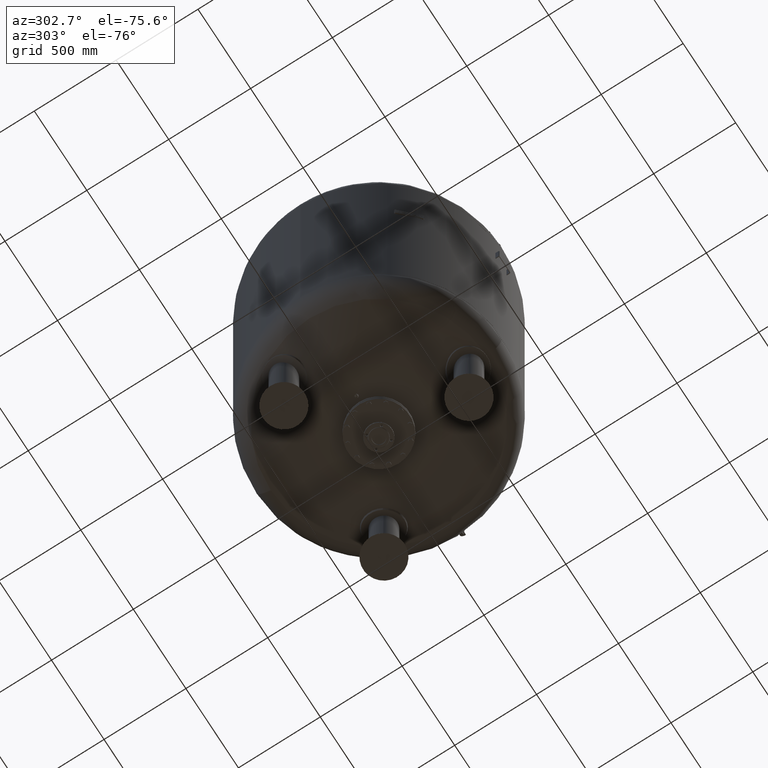
[diagram: clean part render]
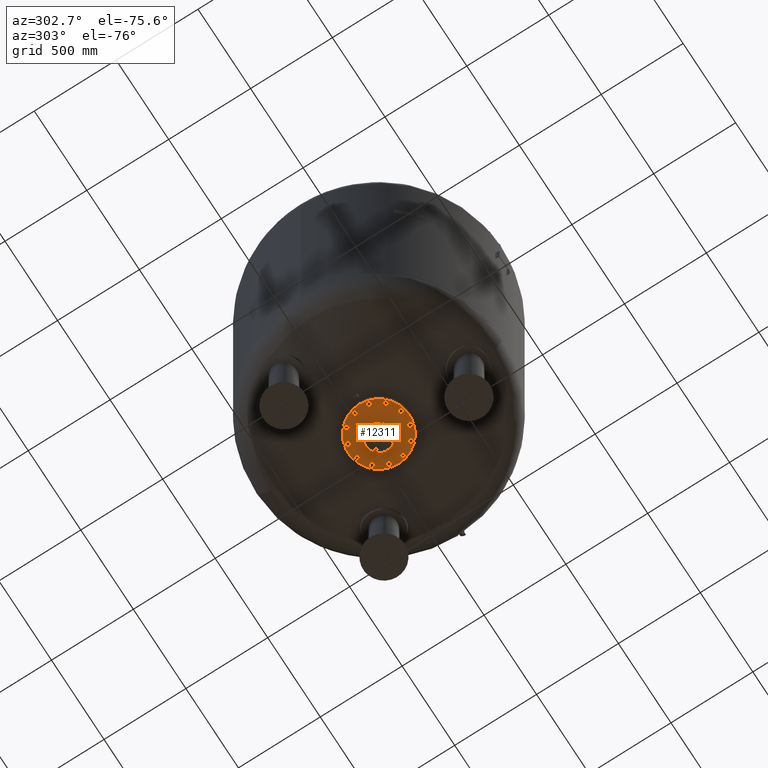
[diagram: same view with one face highlighted and labeled with its STEP entity id]
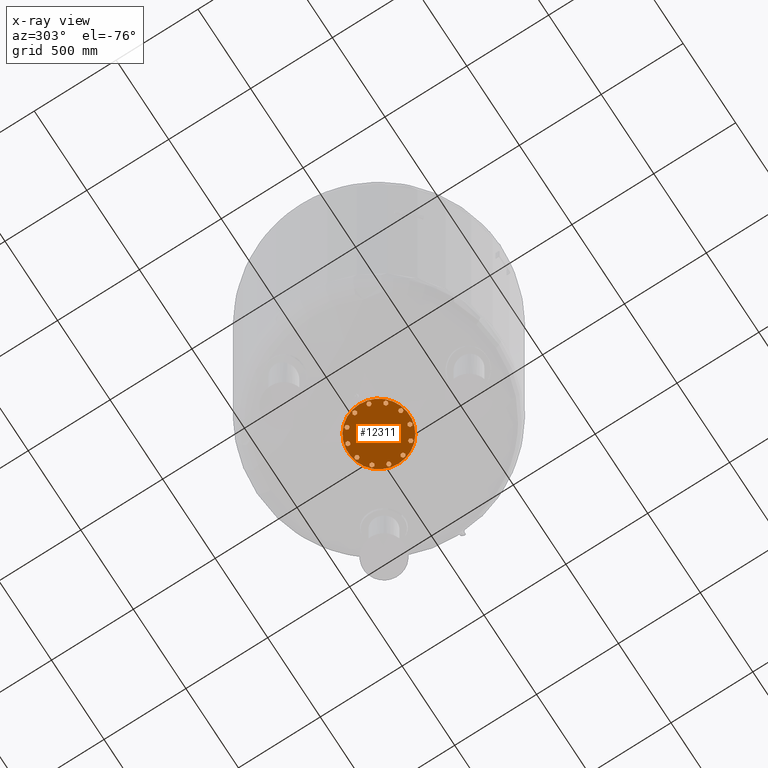
[diagram: x-ray of the same camera — body ghosted, the highlighted face saturated]
A machine part, auxiliary view. The second image highlights one B-rep face of the part: STEP entity #12311.
The next image is the same camera in x-ray: the body ghosted, the highlighted face saturated — about 0% of this face is hidden behind the body in this view.
In plain terms, the highlighted planar face has unit normal (0, 0, -1).
Its self-contained STEP definition (entity closure, byte-faithful):
#4455=CARTESIAN_POINT('',(-38.050000000000018,-4.163799E-015,413.0));
#4456=VERTEX_POINT('',#4455);
#4472=CARTESIAN_POINT('',(38.049999999999983,-8.823426E-015,413.0));
#4473=VERTEX_POINT('',#4472);
#4480=CARTESIAN_POINT('',(-8.604691E-015,-4.163799E-015,413.0));
#4481=DIRECTION('',(0.0,0.0,-1.0));
#4482=DIRECTION('',(-1.0,0.0,0.0));
#4483=AXIS2_PLACEMENT_3D('',#4480,#4481,#4482);
#4484=CIRCLE('',#4483,38.050000000000004);
#4485=EDGE_CURVE('',#4473,#4456,#4484,.T.);
#4495=CARTESIAN_POINT('',(-187.500000000000000,-4.163799E-015,413.000000000000110));
#4496=VERTEX_POINT('',#4495);
#4505=CARTESIAN_POINT('',(187.500000000000000,-2.712517E-014,413.000000000000110));
#4506=VERTEX_POINT('',#4505);
#4507=CARTESIAN_POINT('',(-8.604691E-015,-4.163799E-015,413.000000000000110));
#4508=DIRECTION('',(0.0,0.0,-1.0));
#4509=DIRECTION('',(-1.0,0.0,0.0));
#4510=AXIS2_PLACEMENT_3D('',#4507,#4508,#4509);
#4511=CIRCLE('',#4510,187.500000000000000);
#4512=EDGE_CURVE('',#4506,#4496,#4511,.T.);
#6485=CARTESIAN_POINT('',(43.352190054672320,-175.648982363969960,413.0));
#6486=VERTEX_POINT('',#6485);
#6487=CARTESIAN_POINT('',(55.352190054672313,-168.720779133694460,413.0));
#6488=VERTEX_POINT('',#6487);
#6489=CARTESIAN_POINT('',(43.352190054672320,-175.648982363969960,413.0));
#6490=DIRECTION('',(0.866025403784439,0.500000000000000,0.0));
#6491=VECTOR('',#6490,13.856406460551009);
#6492=LINE('',#6489,#6491);
#6493=EDGE_CURVE('',#6486,#6488,#6492,.T.);
#6525=CARTESIAN_POINT('',(31.352190054672334,-168.720779133694460,413.0));
#6526=VERTEX_POINT('',#6525);
#6527=CARTESIAN_POINT('',(31.352190054672334,-168.720779133694460,413.0));
#6528=DIRECTION('',(0.866025403784439,-0.500000000000000,0.0));
#6529=VECTOR('',#6528,13.856406460551002);
#6530=LINE('',#6527,#6529);
#6531=EDGE_CURVE('',#6526,#6486,#6530,.T.);
#6556=CARTESIAN_POINT('',(31.352190054672349,-154.864372673143440,413.0));
#6557=VERTEX_POINT('',#6556);
#6558=CARTESIAN_POINT('',(31.352190054672349,-154.864372673143440,413.0));
#6559=DIRECTION('',(0.0,-1.0,0.0));
#6560=VECTOR('',#6559,13.856406460551028);
#6561=LINE('',#6558,#6560);
#6562=EDGE_CURVE('',#6557,#6526,#6561,.T.);
#6587=CARTESIAN_POINT('',(43.352190054672320,-147.936169442867940,413.0));
#6588=VERTEX_POINT('',#6587);
#6589=CARTESIAN_POINT('',(43.352190054672320,-147.936169442867940,413.0));
#6590=DIRECTION('',(-0.866025403784438,-0.500000000000000,0.0));
#6591=VECTOR('',#6590,13.856406460550989);
#6592=LINE('',#6589,#6591);
#6593=EDGE_CURVE('',#6588,#6557,#6592,.T.);
#6618=CARTESIAN_POINT('',(55.352190054672313,-154.864372673143440,413.0));
#6619=VERTEX_POINT('',#6618);
#6620=CARTESIAN_POINT('',(55.352190054672313,-168.720779133694460,413.0));
#6621=DIRECTION('',(0.0,1.0,0.0));
#6622=VECTOR('',#6621,13.856406460551028);
#6623=LINE('',#6620,#6622);
#6624=EDGE_CURVE('',#6488,#6619,#6623,.T.);
#6649=CARTESIAN_POINT('',(55.352190054672313,-154.864372673143440,413.0));
#6650=DIRECTION('',(-0.866025403784439,0.500000000000000,0.0));
#6651=VECTOR('',#6650,13.856406460551009);
#6652=LINE('',#6649,#6651);
#6653=EDGE_CURVE('',#6619,#6588,#6652,.T.);
#6959=CARTESIAN_POINT('',(125.368589079022360,-130.440385848746640,413.0));
#6960=VERTEX_POINT('',#6959);
#6961=CARTESIAN_POINT('',(132.296792309297840,-118.440385848746640,413.0));
#6962=VERTEX_POINT('',#6961);
#6963=CARTESIAN_POINT('',(125.368589079022360,-130.440385848746640,413.0));
#6964=DIRECTION('',(0.499999999999999,0.866025403784439,0.0));
#6965=VECTOR('',#6964,13.856406460551007);
#6966=LINE('',#6963,#6965);
#6967=EDGE_CURVE('',#6960,#6962,#6966,.T.);
#6999=CARTESIAN_POINT('',(111.512182618471340,-130.440385848746640,413.0));
#7000=VERTEX_POINT('',#6999);
#7001=CARTESIAN_POINT('',(111.512182618471340,-130.440385848746640,413.0));
#7002=DIRECTION('',(1.0,0.0,0.0));
#7003=VECTOR('',#7002,13.856406460551014);
#7004=LINE('',#7001,#7003);
#7005=EDGE_CURVE('',#7000,#6960,#7004,.T.);
#7030=CARTESIAN_POINT('',(104.583979388195840,-118.440385848746660,413.0));
#7031=VERTEX_POINT('',#7030);
#7032=CARTESIAN_POINT('',(104.583979388195840,-118.440385848746660,413.0));
#7033=DIRECTION('',(0.500000000000000,-0.866025403784439,0.0));
#7034=VECTOR('',#7033,13.856406460551002);
#7035=LINE('',#7032,#7034);
#7036=EDGE_CURVE('',#7031,#7000,#7035,.T.);
#7061=CARTESIAN_POINT('',(111.512182618471340,-106.440385848746640,413.0));
#7062=VERTEX_POINT('',#7061);
#7063=CARTESIAN_POINT('',(111.512182618471340,-106.440385848746640,413.0));
#7064=DIRECTION('',(-0.499999999999999,-0.866025403784439,0.0));
#7065=VECTOR('',#7064,13.856406460551026);
#7066=LINE('',#7063,#7065);
#7067=EDGE_CURVE('',#7062,#7031,#7066,.T.);
#7092=CARTESIAN_POINT('',(125.368589079022340,-106.440385848746640,413.0));
#7093=VERTEX_POINT('',#7092);
#7094=CARTESIAN_POINT('',(132.296792309297840,-118.440385848746640,413.0));
#7095=DIRECTION('',(-0.500000000000000,0.866025403784439,0.0));
#7096=VECTOR('',#7095,13.856406460551014);
#7097=LINE('',#7094,#7096);
#7098=EDGE_CURVE('',#6962,#7093,#7097,.T.);
#7123=CARTESIAN_POINT('',(125.368589079022340,-106.440385848746640,413.0));
#7124=DIRECTION('',(-1.0,0.0,0.0));
#7125=VECTOR('',#7124,13.856406460551000);
#7126=LINE('',#7123,#7125);
#7127=EDGE_CURVE('',#7093,#7062,#7126,.T.);
#7433=CARTESIAN_POINT('',(173.792575903418990,-50.280393284947714,413.0));
#7434=VERTEX_POINT('',#7433);
#7435=CARTESIAN_POINT('',(173.792575903418990,-36.423986824396700,413.0));
#7436=VERTEX_POINT('',#7435);
#7437=CARTESIAN_POINT('',(173.792575903418990,-50.280393284947714,413.0));
#7438=DIRECTION('',(0.0,1.0,0.0));
#7439=VECTOR('',#7438,13.856406460551014);
#7440=LINE('',#7437,#7439);
#7441=EDGE_CURVE('',#7434,#7436,#7440,.T.);
#7473=CARTESIAN_POINT('',(161.792575903418990,-57.208596515223185,413.0));
#7474=VERTEX_POINT('',#7473);
#7475=CARTESIAN_POINT('',(161.792575903418990,-57.208596515223185,413.0));
#7476=DIRECTION('',(0.866025403784440,0.499999999999998,0.0));
#7477=VECTOR('',#7476,13.856406460551000);
#7478=LINE('',#7475,#7477);
#7479=EDGE_CURVE('',#7474,#7434,#7478,.T.);
#7504=CARTESIAN_POINT('',(149.792575903418990,-50.280393284947706,413.0));
#7505=VERTEX_POINT('',#7504);
#7506=CARTESIAN_POINT('',(149.792575903418990,-50.280393284947706,413.0));
#7507=DIRECTION('',(0.866025403784440,-0.499999999999998,0.0));
#7508=VECTOR('',#7507,13.856406460551003);
#7509=LINE('',#7506,#7508);
#7510=EDGE_CURVE('',#7505,#7474,#7509,.T.);
#7535=CARTESIAN_POINT('',(149.792575903419020,-36.423986824396692,413.0));
#7536=VERTEX_POINT('',#7535);
#7537=CARTESIAN_POINT('',(149.792575903419020,-36.423986824396692,413.0));
#7538=DIRECTION('',(0.0,-1.0,0.0));
#7539=VECTOR('',#7538,13.856406460551014);
#7540=LINE('',#7537,#7539);
#7541=EDGE_CURVE('',#7536,#7505,#7540,.T.);
#7566=CARTESIAN_POINT('',(161.792575903418990,-29.495783594121182,413.0));
#7567=VERTEX_POINT('',#7566);
#7568=CARTESIAN_POINT('',(173.792575903418990,-36.423986824396700,413.0));
#7569=DIRECTION('',(-0.866025403784438,0.500000000000000,0.0));
#7570=VECTOR('',#7569,13.856406460551023);
#7571=LINE('',#7568,#7570);
#7572=EDGE_CURVE('',#7436,#7567,#7571,.T.);
#7597=CARTESIAN_POINT('',(161.792575903418990,-29.495783594121182,413.0));
#7598=DIRECTION('',(-0.866025403784438,-0.500000000000001,0.0));
#7599=VECTOR('',#7598,13.856406460550994);
#7600=LINE('',#7597,#7599);
#7601=EDGE_CURVE('',#7567,#7536,#7600,.T.);
#7907=CARTESIAN_POINT('',(175.648982363969960,43.352190054672327,413.0));
#7908=VERTEX_POINT('',#7907);
#7909=CARTESIAN_POINT('',(168.720779133694460,55.352190054672320,413.0));
#7910=VERTEX_POINT('',#7909);
#7911=CARTESIAN_POINT('',(175.648982363969960,43.352190054672327,413.0));
#7912=DIRECTION('',(-0.500000000000000,0.866025403784439,0.0));
#7913=VECTOR('',#7912,13.856406460551009);
#7914=LINE('',#7911,#7913);
#7915=EDGE_CURVE('',#7908,#7910,#7914,.T.);
#7947=CARTESIAN_POINT('',(168.720779133694460,31.352190054672338,413.0));
#7948=VERTEX_POINT('',#7947);
#7949=CARTESIAN_POINT('',(168.720779133694460,31.352190054672338,413.0));
#7950=DIRECTION('',(0.500000000000000,0.866025403784439,0.0));
#7951=VECTOR('',#7950,13.856406460551003);
#7952=LINE('',#7949,#7951);
#7953=EDGE_CURVE('',#7948,#7908,#7952,.T.);
#7978=CARTESIAN_POINT('',(154.864372673143440,31.352190054672352,413.0));
#7979=VERTEX_POINT('',#7978);
#7980=CARTESIAN_POINT('',(154.864372673143440,31.352190054672352,413.0));
#7981=DIRECTION('',(1.0,0.0,0.0));
#7982=VECTOR('',#7981,13.856406460551028);
#7983=LINE('',#7980,#7982);
#7984=EDGE_CURVE('',#7979,#7948,#7983,.T.);
#8009=CARTESIAN_POINT('',(147.936169442867940,43.352190054672327,413.0));
#8010=VERTEX_POINT('',#8009);
#8011=CARTESIAN_POINT('',(147.936169442867940,43.352190054672327,413.0));
#8012=DIRECTION('',(0.500000000000000,-0.866025403784439,0.0));
#8013=VECTOR('',#8012,13.856406460550991);
#8014=LINE('',#8011,#8013);
#8015=EDGE_CURVE('',#8010,#7979,#8014,.T.);
#8040=CARTESIAN_POINT('',(154.864372673143440,55.352190054672320,413.0));
#8041=VERTEX_POINT('',#8040);
#8042=CARTESIAN_POINT('',(168.720779133694460,55.352190054672320,413.0));
#8043=DIRECTION('',(-1.0,0.0,0.0));
#8044=VECTOR('',#8043,13.856406460551028);
#8045=LINE('',#8042,#8044);
#8046=EDGE_CURVE('',#7910,#8041,#8045,.T.);
#8071=CARTESIAN_POINT('',(154.864372673143440,55.352190054672320,413.0));
#8072=DIRECTION('',(-0.500000000000000,-0.866025403784439,0.0));
#8073=VECTOR('',#8072,13.856406460551009);
#8074=LINE('',#8071,#8073);
#8075=EDGE_CURVE('',#8041,#8010,#8074,.T.);
#8381=CARTESIAN_POINT('',(130.440385848746670,125.368589079022270,413.0));
#8382=VERTEX_POINT('',#8381);
#8383=CARTESIAN_POINT('',(118.440385848746690,132.296792309297790,413.0));
#8384=VERTEX_POINT('',#8383);
#8385=CARTESIAN_POINT('',(130.440385848746670,125.368589079022270,413.0));
#8386=DIRECTION('',(-0.866025403784438,0.500000000000001,0.0));
#8387=VECTOR('',#8386,13.856406460551009);
#8388=LINE('',#8385,#8387);
#8389=EDGE_CURVE('',#8382,#8384,#8388,.T.);
#8421=CARTESIAN_POINT('',(130.440385848746670,111.512182618471270,413.0));
#8422=VERTEX_POINT('',#8421);
#8423=CARTESIAN_POINT('',(130.440385848746670,111.512182618471270,413.0));
#8424=DIRECTION('',(0.0,1.0,0.0));
#8425=VECTOR('',#8424,13.856406460551000);
#8426=LINE('',#8423,#8425);
#8427=EDGE_CURVE('',#8422,#8382,#8426,.T.);
#8452=CARTESIAN_POINT('',(118.440385848746700,104.583979388195790,413.0));
#8453=VERTEX_POINT('',#8452);
#8454=CARTESIAN_POINT('',(118.440385848746700,104.583979388195790,413.0));
#8455=DIRECTION('',(0.866025403784439,0.500000000000000,0.0));
#8456=VECTOR('',#8455,13.856406460550982);
#8457=LINE('',#8454,#8456);
#8458=EDGE_CURVE('',#8453,#8422,#8457,.T.);
#8483=CARTESIAN_POINT('',(106.440385848746700,111.512182618471290,413.0));
#8484=VERTEX_POINT('',#8483);
#8485=CARTESIAN_POINT('',(106.440385848746700,111.512182618471290,413.0));
#8486=DIRECTION('',(0.866025403784439,-0.500000000000000,0.0));
#8487=VECTOR('',#8486,13.856406460551014);
#8488=LINE('',#8485,#8487);
#8489=EDGE_CURVE('',#8484,#8453,#8488,.T.);
#8514=CARTESIAN_POINT('',(106.440385848746700,125.368589079022270,413.0));
#8515=VERTEX_POINT('',#8514);
#8516=CARTESIAN_POINT('',(118.440385848746690,132.296792309297790,413.0));
#8517=DIRECTION('',(-0.866025403784438,-0.500000000000001,0.0));
#8518=VECTOR('',#8517,13.856406460551009);
#8519=LINE('',#8516,#8518);
#8520=EDGE_CURVE('',#8384,#8515,#8519,.T.);
#8545=CARTESIAN_POINT('',(106.440385848746700,125.368589079022270,413.0));
#8546=DIRECTION('',(0.0,-1.0,0.0));
#8547=VECTOR('',#8546,13.856406460550986);
#8548=LINE('',#8545,#8547);
#8549=EDGE_CURVE('',#8515,#8484,#8548,.T.);
#8855=CARTESIAN_POINT('',(50.280393284947706,173.792575903418990,413.0));
#8856=VERTEX_POINT('',#8855);
#8857=CARTESIAN_POINT('',(36.423986824396678,173.792575903418940,413.0));
#8858=VERTEX_POINT('',#8857);
#8859=CARTESIAN_POINT('',(50.280393284947706,173.792575903418990,413.0));
#8860=DIRECTION('',(-1.0,0.0,0.0));
#8861=VECTOR('',#8860,13.856406460551028);
#8862=LINE('',#8859,#8861);
#8863=EDGE_CURVE('',#8856,#8858,#8862,.T.);
#8895=CARTESIAN_POINT('',(57.208596515223178,161.792575903418990,413.0));
#8896=VERTEX_POINT('',#8895);
#8897=CARTESIAN_POINT('',(57.208596515223178,161.792575903418990,413.0));
#8898=DIRECTION('',(-0.499999999999998,0.866025403784440,0.0));
#8899=VECTOR('',#8898,13.856406460551000);
#8900=LINE('',#8897,#8899);
#8901=EDGE_CURVE('',#8896,#8856,#8900,.T.);
#8926=CARTESIAN_POINT('',(50.280393284947692,149.792575903418990,413.0));
#8927=VERTEX_POINT('',#8926);
#8928=CARTESIAN_POINT('',(50.280393284947692,149.792575903418990,413.0));
#8929=DIRECTION('',(0.499999999999999,0.866025403784439,0.0));
#8930=VECTOR('',#8929,13.856406460551007);
#8931=LINE('',#8928,#8930);
#8932=EDGE_CURVE('',#8927,#8896,#8931,.T.);
#8957=CARTESIAN_POINT('',(36.423986824396678,149.792575903418990,413.0));
#8958=VERTEX_POINT('',#8957);
#8959=CARTESIAN_POINT('',(36.423986824396678,149.792575903418990,413.0));
#8960=DIRECTION('',(1.0,0.0,0.0));
#8961=VECTOR('',#8960,13.856406460551014);
#8962=LINE('',#8959,#8961);
#8963=EDGE_CURVE('',#8958,#8927,#8962,.T.);
#8988=CARTESIAN_POINT('',(29.495783594121185,161.792575903418990,413.0));
#8989=VERTEX_POINT('',#8988);
#8990=CARTESIAN_POINT('',(36.423986824396678,173.792575903418940,413.0));
#8991=DIRECTION('',(-0.500000000000001,-0.866025403784438,0.0));
#8992=VECTOR('',#8991,13.856406460550961);
#8993=LINE('',#8990,#8992);
#8994=EDGE_CURVE('',#8858,#8989,#8993,.T.);
#9019=CARTESIAN_POINT('',(29.495783594121185,161.792575903418990,413.0));
#9020=DIRECTION('',(0.499999999999999,-0.866025403784439,0.0));
#9021=VECTOR('',#9020,13.856406460551010);
#9022=LINE('',#9019,#9021);
#9023=EDGE_CURVE('',#8989,#8958,#9022,.T.);
#9329=CARTESIAN_POINT('',(-43.352190054672327,175.648982363969990,413.0));
#9330=VERTEX_POINT('',#9329);
#9331=CARTESIAN_POINT('',(-55.352190054672306,168.720779133694460,413.0));
#9332=VERTEX_POINT('',#9331);
#9333=CARTESIAN_POINT('',(-43.352190054672327,175.648982363969990,413.0));
#9334=DIRECTION('',(-0.866025403784438,-0.500000000000002,0.0));
#9335=VECTOR('',#9334,13.856406460551009);
#9336=LINE('',#9333,#9335);
#9337=EDGE_CURVE('',#9330,#9332,#9336,.T.);
#9369=CARTESIAN_POINT('',(-31.352190054672313,168.720779133694490,413.0));
#9370=VERTEX_POINT('',#9369);
#9371=CARTESIAN_POINT('',(-31.352190054672313,168.720779133694490,413.0));
#9372=DIRECTION('',(-0.866025403784439,0.499999999999999,0.0));
#9373=VECTOR('',#9372,13.856406460551026);
#9374=LINE('',#9371,#9373);
#9375=EDGE_CURVE('',#9370,#9330,#9374,.T.);
#9400=CARTESIAN_POINT('',(-31.352190054672327,154.864372673143460,413.0));
#9401=VERTEX_POINT('',#9400);
#9402=CARTESIAN_POINT('',(-31.352190054672327,154.864372673143460,413.0));
#9403=DIRECTION('',(0.0,1.0,0.0));
#9404=VECTOR('',#9403,13.856406460551028);
#9405=LINE('',#9402,#9404);
#9406=EDGE_CURVE('',#9401,#9370,#9405,.T.);
#9431=CARTESIAN_POINT('',(-43.352190054672334,147.936169442867940,413.0));
#9432=VERTEX_POINT('',#9431);
#9433=CARTESIAN_POINT('',(-43.352190054672334,147.936169442867940,413.0));
#9434=DIRECTION('',(0.866025403784438,0.500000000000001,0.0));
#9435=VECTOR('',#9434,13.856406460551034);
#9436=LINE('',#9433,#9435);
#9437=EDGE_CURVE('',#9432,#9401,#9436,.T.);
#9462=CARTESIAN_POINT('',(-55.352190054672306,154.864372673143460,413.0));
#9463=VERTEX_POINT('',#9462);
#9464=CARTESIAN_POINT('',(-55.352190054672306,168.720779133694460,413.0));
#9465=DIRECTION('',(0.0,-1.0,0.0));
#9466=VECTOR('',#9465,13.856406460551000);
#9467=LINE('',#9464,#9466);
#9468=EDGE_CURVE('',#9332,#9463,#9467,.T.);
#9493=CARTESIAN_POINT('',(-55.352190054672306,154.864372673143460,413.0));
#9494=DIRECTION('',(0.866025403784437,-0.500000000000002,0.0));
#9495=VECTOR('',#9494,13.856406460551003);
#9496=LINE('',#9493,#9495);
#9497=EDGE_CURVE('',#9463,#9432,#9496,.T.);
#9803=CARTESIAN_POINT('',(-125.368589079022270,130.440385848746700,413.0));
#9804=VERTEX_POINT('',#9803);
#9805=CARTESIAN_POINT('',(-132.296792309297790,118.440385848746690,413.0));
#9806=VERTEX_POINT('',#9805);
#9807=CARTESIAN_POINT('',(-125.368589079022270,130.440385848746700,413.0));
#9808=DIRECTION('',(-0.500000000000000,-0.866025403784439,0.0));
#9809=VECTOR('',#9808,13.856406460551034);
#9810=LINE('',#9807,#9809);
#9811=EDGE_CURVE('',#9804,#9806,#9810,.T.);
#9843=CARTESIAN_POINT('',(-111.512182618471270,130.440385848746670,413.0));
#9844=VERTEX_POINT('',#9843);
#9845=CARTESIAN_POINT('',(-111.512182618471270,130.440385848746670,413.0));
#9846=DIRECTION('',(-1.0,0.0,0.0));
#9847=VECTOR('',#9846,13.856406460551000);
#9848=LINE('',#9845,#9847);
#9849=EDGE_CURVE('',#9844,#9804,#9848,.T.);
#9874=CARTESIAN_POINT('',(-104.583979388195760,118.440385848746690,413.0));
#9875=VERTEX_POINT('',#9874);
#9876=CARTESIAN_POINT('',(-104.583979388195760,118.440385848746690,413.0));
#9877=DIRECTION('',(-0.500000000000001,0.866025403784438,0.0));
#9878=VECTOR('',#9877,13.856406460551009);
#9879=LINE('',#9876,#9878);
#9880=EDGE_CURVE('',#9875,#9844,#9879,.T.);
#9905=CARTESIAN_POINT('',(-111.512182618471270,106.440385848746700,413.0));
#9906=VERTEX_POINT('',#9905);
#9907=CARTESIAN_POINT('',(-111.512182618471270,106.440385848746700,413.0));
#9908=DIRECTION('',(0.500000000000001,0.866025403784438,0.0));
#9909=VECTOR('',#9908,13.856406460551009);
#9910=LINE('',#9907,#9909);
#9911=EDGE_CURVE('',#9906,#9875,#9910,.T.);
#9936=CARTESIAN_POINT('',(-125.368589079022270,106.440385848746700,413.0));
#9937=VERTEX_POINT('',#9936);
#9938=CARTESIAN_POINT('',(-132.296792309297790,118.440385848746690,413.0));
#9939=DIRECTION('',(0.500000000000001,-0.866025403784438,0.0));
#9940=VECTOR('',#9939,13.856406460551009);
#9941=LINE('',#9938,#9940);
#9942=EDGE_CURVE('',#9806,#9937,#9941,.T.);
#9967=CARTESIAN_POINT('',(-125.368589079022270,106.440385848746700,413.0));
#9968=DIRECTION('',(1.0,0.0,0.0));
#9969=VECTOR('',#9968,13.856406460551000);
#9970=LINE('',#9967,#9969);
#9971=EDGE_CURVE('',#9937,#9906,#9970,.T.);
#10277=CARTESIAN_POINT('',(-173.792575903418960,50.280393284947714,413.0));
#10278=VERTEX_POINT('',#10277);
#10279=CARTESIAN_POINT('',(-173.792575903418960,36.423986824396714,413.0));
#10280=VERTEX_POINT('',#10279);
#10281=CARTESIAN_POINT('',(-173.792575903418960,50.280393284947714,413.0));
#10282=DIRECTION('',(0.0,-1.0,0.0));
#10283=VECTOR('',#10282,13.856406460551000);
#10284=LINE('',#10281,#10283);
#10285=EDGE_CURVE('',#10278,#10280,#10284,.T.);
#10317=CARTESIAN_POINT('',(-161.792575903419020,57.208596515223206,413.0));
#10318=VERTEX_POINT('',#10317);
#10319=CARTESIAN_POINT('',(-161.792575903419020,57.208596515223206,413.0));
#10320=DIRECTION('',(-0.866025403784438,-0.500000000000001,0.0));
#10321=VECTOR('',#10320,13.856406460550961);
#10322=LINE('',#10319,#10321);
#10323=EDGE_CURVE('',#10318,#10278,#10322,.T.);
#10348=CARTESIAN_POINT('',(-149.792575903418990,50.280393284947714,413.0));
#10349=VERTEX_POINT('',#10348);
#10350=CARTESIAN_POINT('',(-149.792575903418990,50.280393284947714,413.0));
#10351=DIRECTION('',(-0.866025403784440,0.499999999999998,0.0));
#10352=VECTOR('',#10351,13.856406460551035);
#10353=LINE('',#10350,#10352);
#10354=EDGE_CURVE('',#10349,#10318,#10353,.T.);
#10379=CARTESIAN_POINT('',(-149.792575903418990,36.423986824396685,413.0));
#10380=VERTEX_POINT('',#10379);
#10381=CARTESIAN_POINT('',(-149.792575903418990,36.423986824396685,413.0));
#10382=DIRECTION('',(0.0,1.0,0.0));
#10383=VECTOR('',#10382,13.856406460551028);
#10384=LINE('',#10381,#10383);
#10385=EDGE_CURVE('',#10380,#10349,#10384,.T.);
#10410=CARTESIAN_POINT('',(-161.792575903418990,29.495783594121210,413.0));
#10411=VERTEX_POINT('',#10410);
#10412=CARTESIAN_POINT('',(-173.792575903418960,36.423986824396714,413.0));
#10413=DIRECTION('',(0.866025403784438,-0.500000000000001,0.0));
#10414=VECTOR('',#10413,13.856406460550991);
#10415=LINE('',#10412,#10414);
#10416=EDGE_CURVE('',#10280,#10411,#10415,.T.);
#10441=CARTESIAN_POINT('',(-161.792575903418990,29.495783594121210,413.0));
#10442=DIRECTION('',(0.866025403784440,0.499999999999998,0.0));
#10443=VECTOR('',#10442,13.856406460551002);
#10444=LINE('',#10441,#10443);
#10445=EDGE_CURVE('',#10411,#10380,#10444,.T.);
#10751=CARTESIAN_POINT('',(-175.648982363969990,-43.352190054672270,413.0));
#10752=VERTEX_POINT('',#10751);
#10753=CARTESIAN_POINT('',(-168.720779133694490,-55.352190054672263,413.0));
#10754=VERTEX_POINT('',#10753);
#10755=CARTESIAN_POINT('',(-175.648982363969990,-43.352190054672270,413.0));
#10756=DIRECTION('',(0.500000000000000,-0.866025403784439,0.0));
#10757=VECTOR('',#10756,13.856406460551009);
#10758=LINE('',#10755,#10757);
#10759=EDGE_CURVE('',#10752,#10754,#10758,.T.);
#10791=CARTESIAN_POINT('',(-168.720779133694490,-31.352190054672281,413.0));
#10792=VERTEX_POINT('',#10791);
#10793=CARTESIAN_POINT('',(-168.720779133694490,-31.352190054672281,413.0));
#10794=DIRECTION('',(-0.500000000000000,-0.866025403784439,0.0));
#10795=VECTOR('',#10794,13.856406460551003);
#10796=LINE('',#10793,#10795);
#10797=EDGE_CURVE('',#10792,#10752,#10796,.T.);
#10822=CARTESIAN_POINT('',(-154.864372673143460,-31.352190054672299,413.0));
#10823=VERTEX_POINT('',#10822);
#10824=CARTESIAN_POINT('',(-154.864372673143460,-31.352190054672299,413.0));
#10825=DIRECTION('',(-1.0,0.0,0.0));
#10826=VECTOR('',#10825,13.856406460551028);
#10827=LINE('',#10824,#10826);
#10828=EDGE_CURVE('',#10823,#10792,#10827,.T.);
#10853=CARTESIAN_POINT('',(-147.936169442867960,-43.352190054672299,413.0));
#10854=VERTEX_POINT('',#10853);
#10855=CARTESIAN_POINT('',(-147.936169442867960,-43.352190054672299,413.0));
#10856=DIRECTION('',(-0.500000000000000,0.866025403784439,0.0));
#10857=VECTOR('',#10856,13.856406460551014);
#10858=LINE('',#10855,#10857);
#10859=EDGE_CURVE('',#10854,#10823,#10858,.T.);
#10884=CARTESIAN_POINT('',(-154.864372673143460,-55.352190054672263,413.0));
#10885=VERTEX_POINT('',#10884);
#10886=CARTESIAN_POINT('',(-168.720779133694490,-55.352190054672263,413.0));
#10887=DIRECTION('',(1.0,0.0,0.0));
#10888=VECTOR('',#10887,13.856406460551028);
#10889=LINE('',#10886,#10888);
#10890=EDGE_CURVE('',#10754,#10885,#10889,.T.);
#10915=CARTESIAN_POINT('',(-154.864372673143460,-55.352190054672263,413.0));
#10916=DIRECTION('',(0.500000000000001,0.866025403784438,0.0));
#10917=VECTOR('',#10916,13.856406460550984);
#10918=LINE('',#10915,#10917);
#10919=EDGE_CURVE('',#10885,#10854,#10918,.T.);
#11225=CARTESIAN_POINT('',(-130.440385848746730,-125.368589079022260,413.0));
#11226=VERTEX_POINT('',#11225);
#11227=CARTESIAN_POINT('',(-118.440385848746730,-132.296792309297760,413.0));
#11228=VERTEX_POINT('',#11227);
#11229=CARTESIAN_POINT('',(-130.440385848746730,-125.368589079022260,413.0));
#11230=DIRECTION('',(0.866025403784439,-0.500000000000000,0.0));
#11231=VECTOR('',#11230,13.856406460551014);
#11232=LINE('',#11229,#11231);
#11233=EDGE_CURVE('',#11226,#11228,#11232,.T.);
#11265=CARTESIAN_POINT('',(-130.440385848746700,-111.512182618471260,413.0));
#11266=VERTEX_POINT('',#11265);
#11267=CARTESIAN_POINT('',(-130.440385848746700,-111.512182618471260,413.0));
#11268=DIRECTION('',(0.0,-1.0,0.0));
#11269=VECTOR('',#11268,13.856406460551000);
#11270=LINE('',#11267,#11269);
#11271=EDGE_CURVE('',#11266,#11226,#11270,.T.);
#11296=CARTESIAN_POINT('',(-118.440385848746700,-104.583979388195760,413.0));
#11297=VERTEX_POINT('',#11296);
#11298=CARTESIAN_POINT('',(-118.440385848746700,-104.583979388195760,413.0));
#11299=DIRECTION('',(-0.866025403784439,-0.500000000000000,0.0));
#11300=VECTOR('',#11299,13.856406460551014);
#11301=LINE('',#11298,#11300);
#11302=EDGE_CURVE('',#11297,#11266,#11301,.T.);
#11327=CARTESIAN_POINT('',(-106.440385848746710,-111.512182618471270,413.0));
#11328=VERTEX_POINT('',#11327);
#11329=CARTESIAN_POINT('',(-106.440385848746710,-111.512182618471270,413.0));
#11330=DIRECTION('',(-0.866025403784438,0.500000000000001,0.0));
#11331=VECTOR('',#11330,13.856406460551009);
#11332=LINE('',#11329,#11331);
#11333=EDGE_CURVE('',#11328,#11297,#11332,.T.);
#11358=CARTESIAN_POINT('',(-106.440385848746710,-125.368589079022260,413.0));
#11359=VERTEX_POINT('',#11358);
#11360=CARTESIAN_POINT('',(-118.440385848746730,-132.296792309297760,413.0));
#11361=DIRECTION('',(0.866025403784439,0.499999999999999,0.0));
#11362=VECTOR('',#11361,13.856406460551026);
#11363=LINE('',#11360,#11362);
#11364=EDGE_CURVE('',#11228,#11359,#11363,.T.);
#11389=CARTESIAN_POINT('',(-106.440385848746710,-125.368589079022260,413.0));
#11390=DIRECTION('',(0.0,1.0,0.0));
#11391=VECTOR('',#11390,13.856406460550986);
#11392=LINE('',#11389,#11391);
#11393=EDGE_CURVE('',#11359,#11328,#11392,.T.);
#11995=CARTESIAN_POINT('',(-50.280393284947756,-173.792575903418960,413.0));
#11996=VERTEX_POINT('',#11995);
#11997=CARTESIAN_POINT('',(-36.423986824396742,-173.792575903418960,413.0));
#11998=VERTEX_POINT('',#11997);
#11999=CARTESIAN_POINT('',(-50.280393284947756,-173.792575903418960,413.0));
#12000=DIRECTION('',(1.0,0.0,0.0));
#12001=VECTOR('',#12000,13.856406460551014);
#12002=LINE('',#11999,#12001);
#12003=EDGE_CURVE('',#11996,#11998,#12002,.T.);
#12035=CARTESIAN_POINT('',(-57.208596515223249,-161.792575903418990,413.0));
#12036=VERTEX_POINT('',#12035);
#12037=CARTESIAN_POINT('',(-57.208596515223249,-161.792575903418990,413.0));
#12038=DIRECTION('',(0.500000000000000,-0.866025403784439,0.0));
#12039=VECTOR('',#12038,13.856406460550986);
#12040=LINE('',#12037,#12039);
#12041=EDGE_CURVE('',#12036,#11996,#12040,.T.);
#12066=CARTESIAN_POINT('',(-50.280393284947735,-149.792575903418990,413.0));
#12067=VERTEX_POINT('',#12066);
#12068=CARTESIAN_POINT('',(-50.280393284947735,-149.792575903418990,413.0));
#12069=DIRECTION('',(-0.500000000000000,-0.866025403784438,0.0));
#12070=VECTOR('',#12069,13.856406460551021);
#12071=LINE('',#12068,#12070);
#12072=EDGE_CURVE('',#12067,#12036,#12071,.T.);
#12097=CARTESIAN_POINT('',(-36.423986824396721,-149.792575903418990,413.0));
#12098=VERTEX_POINT('',#12097);
#12099=CARTESIAN_POINT('',(-36.423986824396721,-149.792575903418990,413.0));
#12100=DIRECTION('',(-1.0,0.0,0.0));
#12101=VECTOR('',#12100,13.856406460551014);
#12102=LINE('',#12099,#12101);
#12103=EDGE_CURVE('',#12098,#12067,#12102,.T.);
#12128=CARTESIAN_POINT('',(-29.495783594121228,-161.792575903418990,413.0));
#12129=VERTEX_POINT('',#12128);
#12130=CARTESIAN_POINT('',(-36.423986824396742,-173.792575903418960,413.0));
#12131=DIRECTION('',(0.500000000000001,0.866025403784438,0.0));
#12132=VECTOR('',#12131,13.856406460550996);
#12133=LINE('',#12130,#12132);
#12134=EDGE_CURVE('',#11998,#12129,#12133,.T.);
#12159=CARTESIAN_POINT('',(-29.495783594121228,-161.792575903418990,413.0));
#12160=DIRECTION('',(-0.499999999999999,0.866025403784439,0.0));
#12161=VECTOR('',#12160,13.856406460551010);
#12162=LINE('',#12159,#12161);
#12163=EDGE_CURVE('',#12129,#12098,#12162,.T.);
#12190=CARTESIAN_POINT('',(-19.025000000000009,-4.163799E-015,413.0));
#12191=DIRECTION('',(0.0,0.0,-1.0));
#12192=DIRECTION('',(0.0,-1.0,0.0));
#12193=AXIS2_PLACEMENT_3D('',#12190,#12191,#12192);
#12194=PLANE('',#12193);
#12195=CARTESIAN_POINT('',(-8.604691E-015,-4.163799E-015,413.000000000000110));
#12196=DIRECTION('',(0.0,0.0,-1.0));
#12197=DIRECTION('',(-1.0,0.0,0.0));
#12198=AXIS2_PLACEMENT_3D('',#12195,#12196,#12197);
#12199=CIRCLE('',#12198,187.500000000000000);
#12200=EDGE_CURVE('',#4496,#4506,#12199,.T.);
#12201=ORIENTED_EDGE('',*,*,#12200,.T.);
#12202=ORIENTED_EDGE('',*,*,#4512,.T.);
#12203=EDGE_LOOP('',(#12201,#12202));
#12204=FACE_OUTER_BOUND('',#12203,.T.);
#12205=ORIENTED_EDGE('',*,*,#6493,.T.);
#12206=ORIENTED_EDGE('',*,*,#6624,.T.);
#12207=ORIENTED_EDGE('',*,*,#6653,.T.);
#12208=ORIENTED_EDGE('',*,*,#6593,.T.);
#12209=ORIENTED_EDGE('',*,*,#6562,.T.);
#12210=ORIENTED_EDGE('',*,*,#6531,.T.);
#12211=EDGE_LOOP('',(#12205,#12206,#12207,#12208,#12209,#12210));
#12212=FACE_BOUND('',#12211,.T.);
#12213=ORIENTED_EDGE('',*,*,#6967,.T.);
#12214=ORIENTED_EDGE('',*,*,#7098,.T.);
#12215=ORIENTED_EDGE('',*,*,#7127,.T.);
#12216=ORIENTED_EDGE('',*,*,#7067,.T.);
#12217=ORIENTED_EDGE('',*,*,#7036,.T.);
#12218=ORIENTED_EDGE('',*,*,#7005,.T.);
#12219=EDGE_LOOP('',(#12213,#12214,#12215,#12216,#12217,#12218));
#12220=FACE_BOUND('',#12219,.T.);
#12221=ORIENTED_EDGE('',*,*,#7441,.T.);
#12222=ORIENTED_EDGE('',*,*,#7572,.T.);
#12223=ORIENTED_EDGE('',*,*,#7601,.T.);
#12224=ORIENTED_EDGE('',*,*,#7541,.T.);
#12225=ORIENTED_EDGE('',*,*,#7510,.T.);
#12226=ORIENTED_EDGE('',*,*,#7479,.T.);
#12227=EDGE_LOOP('',(#12221,#12222,#12223,#12224,#12225,#12226));
#12228=FACE_BOUND('',#12227,.T.);
#12229=ORIENTED_EDGE('',*,*,#7915,.T.);
#12230=ORIENTED_EDGE('',*,*,#8046,.T.);
#12231=ORIENTED_EDGE('',*,*,#8075,.T.);
#12232=ORIENTED_EDGE('',*,*,#8015,.T.);
#12233=ORIENTED_EDGE('',*,*,#7984,.T.);
#12234=ORIENTED_EDGE('',*,*,#7953,.T.);
#12235=EDGE_LOOP('',(#12229,#12230,#12231,#12232,#12233,#12234));
#12236=FACE_BOUND('',#12235,.T.);
#12237=ORIENTED_EDGE('',*,*,#8389,.T.);
#12238=ORIENTED_EDGE('',*,*,#8520,.T.);
#12239=ORIENTED_EDGE('',*,*,#8549,.T.);
#12240=ORIENTED_EDGE('',*,*,#8489,.T.);
#12241=ORIENTED_EDGE('',*,*,#8458,.T.);
#12242=ORIENTED_EDGE('',*,*,#8427,.T.);
#12243=EDGE_LOOP('',(#12237,#12238,#12239,#12240,#12241,#12242));
#12244=FACE_BOUND('',#12243,.T.);
#12245=ORIENTED_EDGE('',*,*,#8863,.T.);
#12246=ORIENTED_EDGE('',*,*,#8994,.T.);
#12247=ORIENTED_EDGE('',*,*,#9023,.T.);
#12248=ORIENTED_EDGE('',*,*,#8963,.T.);
#12249=ORIENTED_EDGE('',*,*,#8932,.T.);
#12250=ORIENTED_EDGE('',*,*,#8901,.T.);
#12251=EDGE_LOOP('',(#12245,#12246,#12247,#12248,#12249,#12250));
#12252=FACE_BOUND('',#12251,.T.);
#12253=ORIENTED_EDGE('',*,*,#9337,.T.);
#12254=ORIENTED_EDGE('',*,*,#9468,.T.);
#12255=ORIENTED_EDGE('',*,*,#9497,.T.);
#12256=ORIENTED_EDGE('',*,*,#9437,.T.);
#12257=ORIENTED_EDGE('',*,*,#9406,.T.);
#12258=ORIENTED_EDGE('',*,*,#9375,.T.);
#12259=EDGE_LOOP('',(#12253,#12254,#12255,#12256,#12257,#12258));
#12260=FACE_BOUND('',#12259,.T.);
#12261=ORIENTED_EDGE('',*,*,#9811,.T.);
#12262=ORIENTED_EDGE('',*,*,#9942,.T.);
#12263=ORIENTED_EDGE('',*,*,#9971,.T.);
#12264=ORIENTED_EDGE('',*,*,#9911,.T.);
#12265=ORIENTED_EDGE('',*,*,#9880,.T.);
#12266=ORIENTED_EDGE('',*,*,#9849,.T.);
#12267=EDGE_LOOP('',(#12261,#12262,#12263,#12264,#12265,#12266));
#12268=FACE_BOUND('',#12267,.T.);
#12269=ORIENTED_EDGE('',*,*,#10285,.T.);
#12270=ORIENTED_EDGE('',*,*,#10416,.T.);
#12271=ORIENTED_EDGE('',*,*,#10445,.T.);
#12272=ORIENTED_EDGE('',*,*,#10385,.T.);
#12273=ORIENTED_EDGE('',*,*,#10354,.T.);
#12274=ORIENTED_EDGE('',*,*,#10323,.T.);
#12275=EDGE_LOOP('',(#12269,#12270,#12271,#12272,#12273,#12274));
#12276=FACE_BOUND('',#12275,.T.);
#12277=ORIENTED_EDGE('',*,*,#10759,.T.);
#12278=ORIENTED_EDGE('',*,*,#10890,.T.);
#12279=ORIENTED_EDGE('',*,*,#10919,.T.);
#12280=ORIENTED_EDGE('',*,*,#10859,.T.);
#12281=ORIENTED_EDGE('',*,*,#10828,.T.);
#12282=ORIENTED_EDGE('',*,*,#10797,.T.);
#12283=EDGE_LOOP('',(#12277,#12278,#12279,#12280,#12281,#12282));
#12284=FACE_BOUND('',#12283,.T.);
#12285=ORIENTED_EDGE('',*,*,#11233,.T.);
#12286=ORIENTED_EDGE('',*,*,#11364,.T.);
#12287=ORIENTED_EDGE('',*,*,#11393,.T.);
#12288=ORIENTED_EDGE('',*,*,#11333,.T.);
#12289=ORIENTED_EDGE('',*,*,#11302,.T.);
#12290=ORIENTED_EDGE('',*,*,#11271,.T.);
#12291=EDGE_LOOP('',(#12285,#12286,#12287,#12288,#12289,#12290));
#12292=FACE_BOUND('',#12291,.T.);
#12293=ORIENTED_EDGE('',*,*,#12003,.T.);
#12294=ORIENTED_EDGE('',*,*,#12134,.T.);
#12295=ORIENTED_EDGE('',*,*,#12163,.T.);
#12296=ORIENTED_EDGE('',*,*,#12103,.T.);
#12297=ORIENTED_EDGE('',*,*,#12072,.T.);
#12298=ORIENTED_EDGE('',*,*,#12041,.T.);
#12299=EDGE_LOOP('',(#12293,#12294,#12295,#12296,#12297,#12298));
#12300=FACE_BOUND('',#12299,.T.);
#12301=CARTESIAN_POINT('',(-8.604691E-015,-4.163799E-015,413.0));
#12302=DIRECTION('',(0.0,0.0,-1.0));
#12303=DIRECTION('',(-1.0,0.0,0.0));
#12304=AXIS2_PLACEMENT_3D('',#12301,#12302,#12303);
#12305=CIRCLE('',#12304,38.050000000000004);
#12306=EDGE_CURVE('',#4456,#4473,#12305,.T.);
#12307=ORIENTED_EDGE('',*,*,#12306,.F.);
#12308=ORIENTED_EDGE('',*,*,#4485,.F.);
#12309=EDGE_LOOP('',(#12307,#12308));
#12310=FACE_BOUND('',#12309,.T.);
#12311=ADVANCED_FACE('',(#12204,#12212,#12220,#12228,#12236,#12244,#12252,#12260,#12268,#12276,#12284,#12292,#12300,#12310),#12194,.T.);